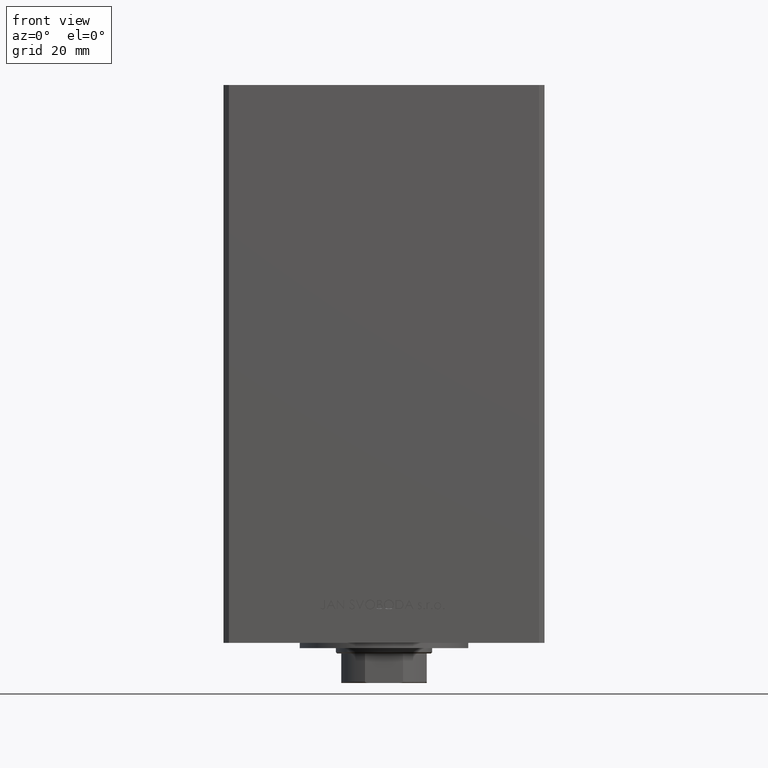
[diagram: clean part render]
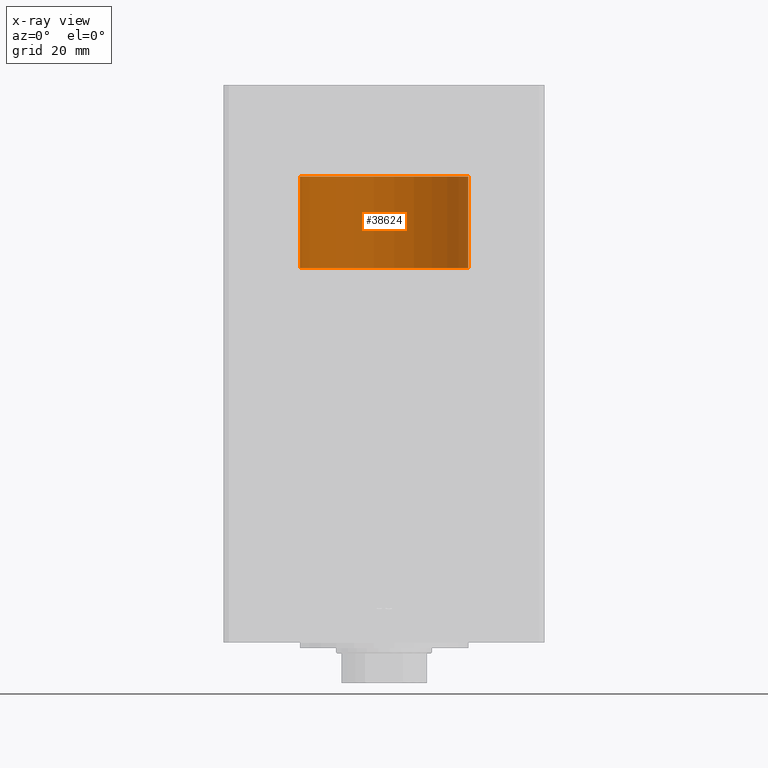
[diagram: x-ray — body ghosted, one internal face saturated and labeled with its STEP entity id]
A machine part, front view, then the same camera in x-ray: the body is ghosted and one INTERNAL B-rep face — a face not visible from any outside direction — is saturated and labeled: STEP entity #38624.
In plain terms, the highlighted cylindrical surface (partial cylindrical patch) has radius 31.5 mm, axis along (0, -0, 1).
Its self-contained STEP definition (entity closure, byte-faithful):
#2022 = CARTESIAN_POINT ( 'NONE',  ( 0.000000000000000000, 0.000000000000000000, 34.25000000000000000 ) ) ;
#3001 = DIRECTION ( 'NONE',  ( 1.000000000000000000, 0.000000000000000000, 0.000000000000000000 ) ) ;
#6486 = FACE_OUTER_BOUND ( 'NONE', #43564, .T. ) ;
#6725 = DIRECTION ( 'NONE',  ( 0.000000000000000000, 0.000000000000000000, 1.000000000000000000 ) ) ;
#9623 = EDGE_CURVE ( 'NONE', #14744, #20827, #28904, .T. ) ;
#9755 = DIRECTION ( 'NONE',  ( -0.000000000000000000, -0.000000000000000000, -1.000000000000000000 ) ) ;
#12078 = CARTESIAN_POINT ( 'NONE',  ( -31.50000000000000000, 0.000000000000000000, 34.25000000000000000 ) ) ;
#12966 = CARTESIAN_POINT ( 'NONE',  ( 31.50000000000000000, 3.857637417314162689E-15, 34.25000000000000000 ) ) ;
#14744 = VERTEX_POINT ( 'NONE', #48639 ) ;
#15556 = LINE ( 'NONE', #12078, #38311 ) ;
#15867 = ORIENTED_EDGE ( 'NONE', *, *, #9623, .T. ) ;
#16718 = CARTESIAN_POINT ( 'NONE',  ( -31.50000000000000000, 0.000000000000000000, 0.000000000000000000 ) ) ;
#18380 = ORIENTED_EDGE ( 'NONE', *, *, #19264, .F. ) ;
#18937 = CARTESIAN_POINT ( 'NONE',  ( 31.50000000000000000, 3.857637417314162689E-15, 0.000000000000000000 ) ) ;
#19264 = EDGE_CURVE ( 'NONE', #25791, #38986, #15556, .T. ) ;
#20491 = DIRECTION ( 'NONE',  ( 1.000000000000000000, 0.000000000000000000, 0.000000000000000000 ) ) ;
#20827 = VERTEX_POINT ( 'NONE', #18937 ) ;
#22031 = AXIS2_PLACEMENT_3D ( 'NONE', #2022, #6725, #3001 ) ;
#25791 = VERTEX_POINT ( 'NONE', #32587 ) ;
#27190 = CIRCLE ( 'NONE', #36715, 31.50000000000000000 ) ;
#27699 = AXIS2_PLACEMENT_3D ( 'NONE', #33091, #41034, #40306 ) ;
#28904 = LINE ( 'NONE', #12966, #39650 ) ;
#31250 = ORIENTED_EDGE ( 'NONE', *, *, #48504, .T. ) ;
#31659 = EDGE_CURVE ( 'NONE', #14744, #25791, #47435, .T. ) ;
#32587 = CARTESIAN_POINT ( 'NONE',  ( -31.50000000000000000, 0.000000000000000000, 34.25000000000000000 ) ) ;
#33091 = CARTESIAN_POINT ( 'NONE',  ( 0.000000000000000000, 0.000000000000000000, 34.25000000000000000 ) ) ;
#36715 = AXIS2_PLACEMENT_3D ( 'NONE', #46845, #39644, #20491 ) ;
#38311 = VECTOR ( 'NONE', #43133, 1000.000000000000000 ) ;
#38624 = ADVANCED_FACE ( 'NONE', ( #6486 ), #40800, .T. ) ;
#38986 = VERTEX_POINT ( 'NONE', #16718 ) ;
#39644 = DIRECTION ( 'NONE',  ( 0.000000000000000000, 0.000000000000000000, 1.000000000000000000 ) ) ;
#39650 = VECTOR ( 'NONE', #9755, 1000.000000000000000 ) ;
#40306 = DIRECTION ( 'NONE',  ( -1.000000000000000000, 0.000000000000000000, 0.000000000000000000 ) ) ;
#40719 = ORIENTED_EDGE ( 'NONE', *, *, #31659, .F. ) ;
#40800 = CYLINDRICAL_SURFACE ( 'NONE', #27699, 31.50000000000000000 ) ;
#41034 = DIRECTION ( 'NONE',  ( -0.000000000000000000, -0.000000000000000000, -1.000000000000000000 ) ) ;
#43133 = DIRECTION ( 'NONE',  ( -0.000000000000000000, -0.000000000000000000, -1.000000000000000000 ) ) ;
#43564 = EDGE_LOOP ( 'NONE', ( #40719, #15867, #31250, #18380 ) ) ;
#46845 = CARTESIAN_POINT ( 'NONE',  ( 0.000000000000000000, 0.000000000000000000, 0.000000000000000000 ) ) ;
#47435 = CIRCLE ( 'NONE', #22031, 31.50000000000000000 ) ;
#48504 = EDGE_CURVE ( 'NONE', #20827, #38986, #27190, .T. ) ;
#48639 = CARTESIAN_POINT ( 'NONE',  ( 31.50000000000000000, 3.857637417314162689E-15, 34.25000000000000000 ) ) ;